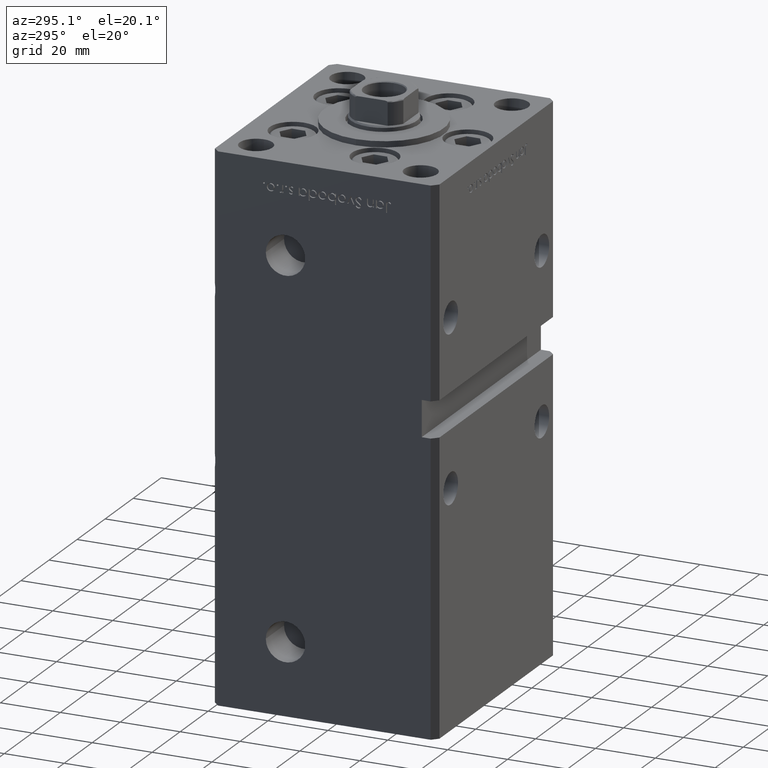
[diagram: clean part render]
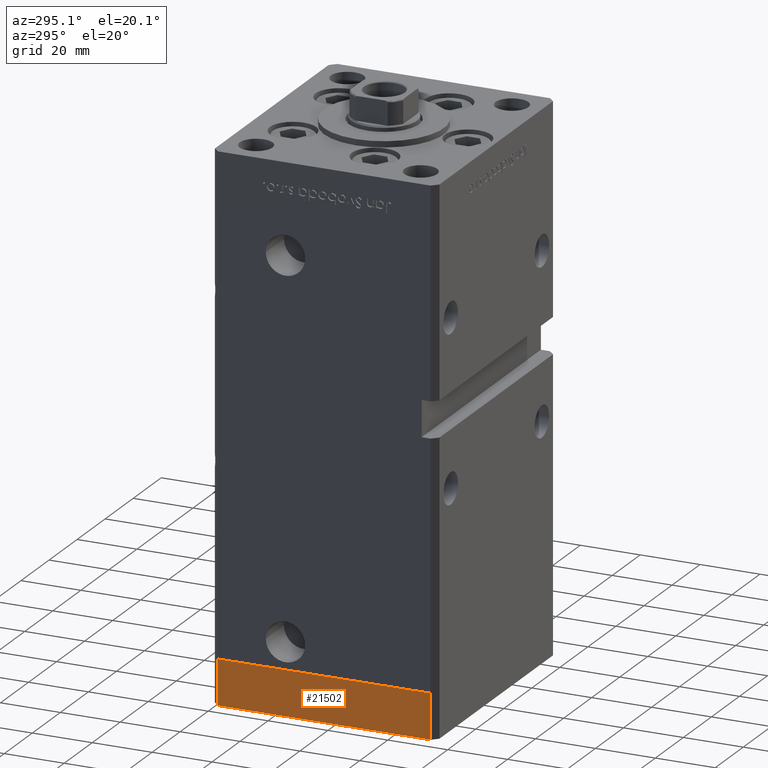
[diagram: same view with one face highlighted and labeled with its STEP entity id]
A machine part, auxiliary view. The second image highlights one B-rep face of the part: STEP entity #21502.
In plain terms, the highlighted planar face has unit normal (-1, -0, 0).
Its self-contained STEP definition (entity closure, byte-faithful):
#336 = CARTESIAN_POINT ( 'NONE',  ( 42.49999999999992895, 35.50000000000000000, -15.00000000000000000 ) ) ;
#1057 = CARTESIAN_POINT ( 'NONE',  ( 42.50000000000000711, -35.50000000000000000, -15.00000000000000000 ) ) ;
#2014 = DIRECTION ( 'NONE',  ( -1.172770800660376741E-15, 1.000000000000000000, 0.000000000000000000 ) ) ;
#3164 = CARTESIAN_POINT ( 'NONE',  ( 42.50000000000000711, -35.50000000000000000, 0.000000000000000000 ) ) ;
#3775 = EDGE_CURVE ( 'NONE', #37297, #19969, #18518, .T. ) ;
#3827 = CARTESIAN_POINT ( 'NONE',  ( 42.49999999999992895, 35.50000000000000000, 0.000000000000000000 ) ) ;
#4545 = LINE ( 'NONE', #13398, #52584 ) ;
#6825 = VECTOR ( 'NONE', #18212, 1000.000000000000000 ) ;
#7955 = PLANE ( 'NONE',  #34831 ) ;
#11996 = FACE_OUTER_BOUND ( 'NONE', #45844, .T. ) ;
#12313 = VERTEX_POINT ( 'NONE', #336 ) ;
#13398 = CARTESIAN_POINT ( 'NONE',  ( 42.50000000000000711, -35.50000000000000000, -15.00000000000000000 ) ) ;
#18212 = DIRECTION ( 'NONE',  ( 0.000000000000000000, 0.000000000000000000, 1.000000000000000000 ) ) ;
#18518 = LINE ( 'NONE', #1057, #38856 ) ;
#19783 = ORIENTED_EDGE ( 'NONE', *, *, #39900, .T. ) ;
#19969 = VERTEX_POINT ( 'NONE', #3164 ) ;
#20819 = CARTESIAN_POINT ( 'NONE',  ( 42.50000000000000711, -35.50000000000000000, 0.000000000000000000 ) ) ;
#21502 = ADVANCED_FACE ( 'NONE', ( #11996 ), #7955, .T. ) ;
#21599 = DIRECTION ( 'NONE',  ( -1.172770800660376741E-15, 1.000000000000000000, 0.000000000000000000 ) ) ;
#22340 = ORIENTED_EDGE ( 'NONE', *, *, #3775, .F. ) ;
#25105 = LINE ( 'NONE', #20819, #52218 ) ;
#27385 = CARTESIAN_POINT ( 'NONE',  ( 42.50000000000000711, -35.50000000000000000, -15.00000000000000000 ) ) ;
#30873 = DIRECTION ( 'NONE',  ( 0.000000000000000000, 0.000000000000000000, 1.000000000000000000 ) ) ;
#33837 = DIRECTION ( 'NONE',  ( -1.172770800660376741E-15, 1.000000000000000000, 0.000000000000000000 ) ) ;
#34451 = ORIENTED_EDGE ( 'NONE', *, *, #35765, .F. ) ;
#34799 = DIRECTION ( 'NONE',  ( 1.000000000000000000, 1.172770800660376741E-15, -0.000000000000000000 ) ) ;
#34831 = AXIS2_PLACEMENT_3D ( 'NONE', #40748, #34799, #2014 ) ;
#35264 = VERTEX_POINT ( 'NONE', #3827 ) ;
#35765 = EDGE_CURVE ( 'NONE', #19969, #35264, #25105, .T. ) ;
#37297 = VERTEX_POINT ( 'NONE', #27385 ) ;
#38856 = VECTOR ( 'NONE', #30873, 1000.000000000000000 ) ;
#39806 = ORIENTED_EDGE ( 'NONE', *, *, #52051, .T. ) ;
#39900 = EDGE_CURVE ( 'NONE', #12313, #35264, #43474, .T. ) ;
#40748 = CARTESIAN_POINT ( 'NONE',  ( 42.50000000000000711, -35.50000000000000000, -15.00000000000000000 ) ) ;
#43474 = LINE ( 'NONE', #47776, #6825 ) ;
#45844 = EDGE_LOOP ( 'NONE', ( #34451, #22340, #39806, #19783 ) ) ;
#47776 = CARTESIAN_POINT ( 'NONE',  ( 42.49999999999992895, 35.50000000000000000, -15.00000000000000000 ) ) ;
#52051 = EDGE_CURVE ( 'NONE', #37297, #12313, #4545, .T. ) ;
#52218 = VECTOR ( 'NONE', #21599, 1000.000000000000000 ) ;
#52584 = VECTOR ( 'NONE', #33837, 1000.000000000000000 ) ;